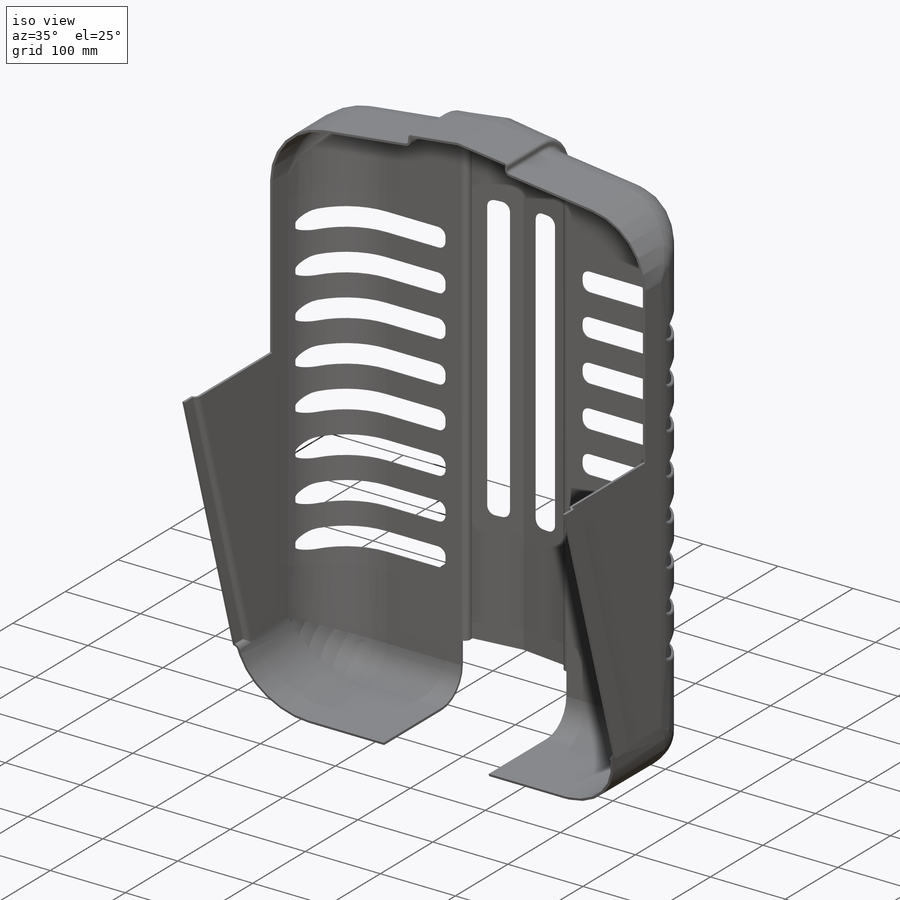
[diagram: iso view]
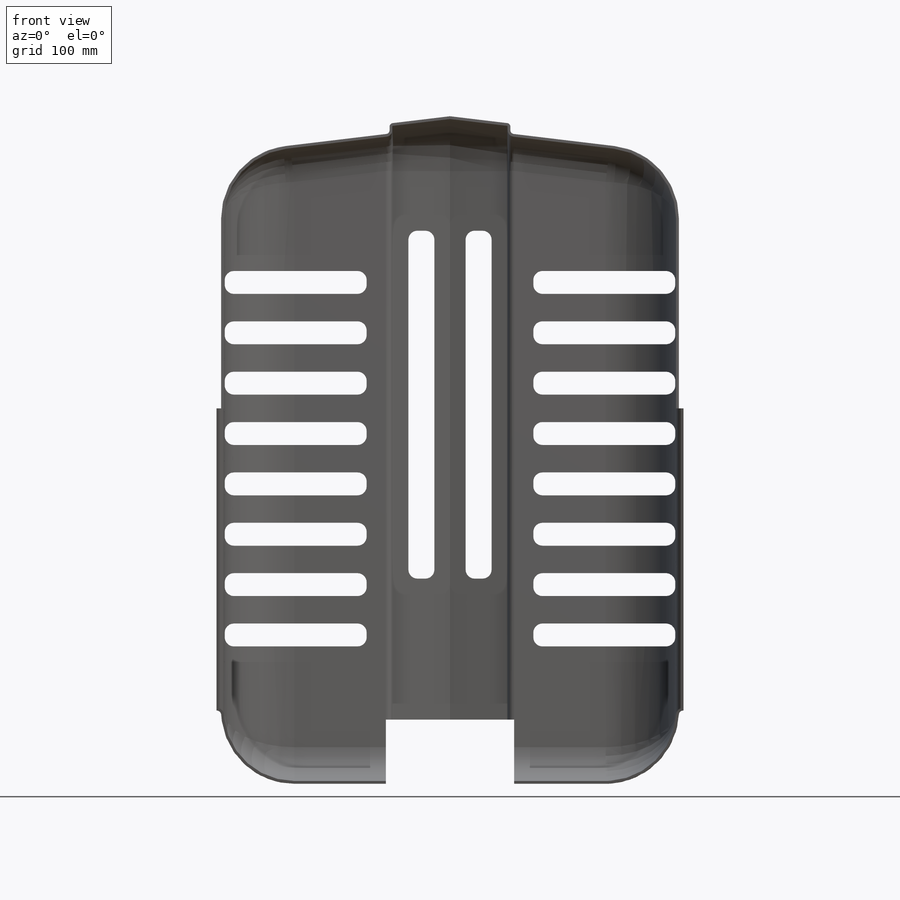
[diagram: front view]
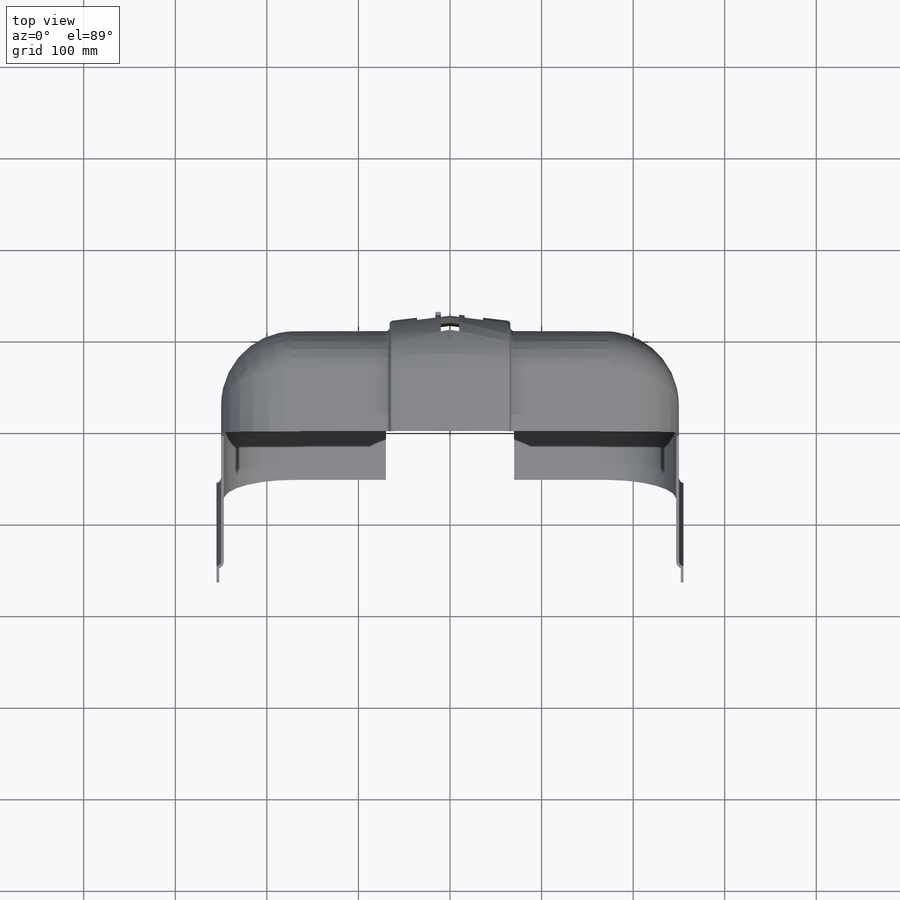
[diagram: top view]
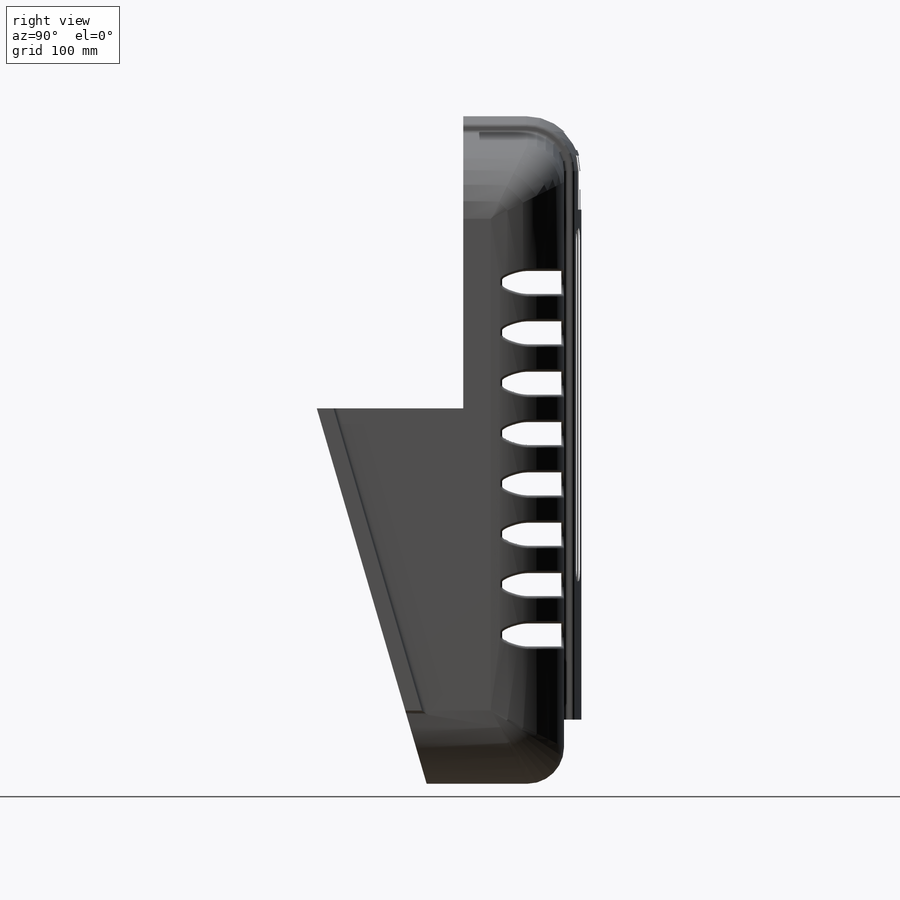
[diagram: right view]
SOLIDWORKS PART (.sldprt)
format: sldprt  version: not decoded by parser v0  size: 1,665,536 bytes
history: native  units: mm
features: sketch x9, fillet x5, extrude x4, cut_extrude x3, material x1, sweep x1, plane x1, shell x1, pattern_linear x1 (+13 scaffold rows collapsed)
feature tree (39):
  scaffold x13  (default folders/planes/origin — collapsed)
  material  "Material <not specified>"
  sketch  "Sketch2"  dims[c1.D1=500.0mm c1.D2=11.0mm c1.D3=132.0mm c1.D4=728.7mm c1.D5=7.92mm c2.D2=30.0mm c2.D3=718.0mm]
  extrude  "Boss-Extrude1"  Depth=270mm
  fillet  "Fillet6"  Radius=40mm
  sketch  "Sketch4"  dims[c1.D1=30.0mm c1.D2=11.0mm c1.D3=132.0mm c2.D2=7.92mm c2.D4=66.0mm c3.D2=7.92mm c3.D4=11.0mm]
  sketch  "3DSketch1"  dims[c1.D2=120.0mm c1.D1=~112.934359mm c1.D3=11.0mm c2.D1=~40.835427mm c2.D3=~25.74554mm c2.D4=20.0mm c3.D1=11.0mm]
  sweep  "Sweep1"
  fillet  "Fillet5"  Radius=80mm
  fillet  "Fillet7"  Radius=4mm
  plane  "Plane1"
  sketch  "Sketch9"  dims[c1.D7=10.0mm c1.D1=25.0mm c1.D2=25.0mm c1.D3=150.0mm c1.D4=21.0mm c2.D1=130.0mm c2.D5=70.0mm c2.D6=70.0mm c2.D7=55.0mm c3.D5=~17.141719mm c3.D8=65.0mm c3.D9=320.0mm c3.D7=380.0mm c4.D8=17.0mm c4.D9=65.0mm c4.D1=380.0mm c4.D10=4.0mm c4.D5=17.0mm c4.D7=17.0mm]
  sketch  "Sketch8"  dims[D1=120.0mm D2=410.0mm D3=160.0mm]
  cut_extrude  "Cut-Extrude2"  [1 undecoded]
  sketch  "Sketch11"  dims[c1.D1=18.0mm c1.D2=330.0mm c2.D1=18.0mm]
  extrude  "Boss-Extrude4"  Depth=5mm
  fillet  "Fillet9"  Radius=5mm
  shell  "Shell3"  Thickness=3mm
  cut_extrude  "Cut-Extrude8"  [1 undecoded]
  cut_extrude  "Cut-Extrude9"  [1 undecoded]
  sketch  "Sketch9<4>"
  pattern_linear  "LPattern1"  Count1=8 Count2=1 Spacing1=55mm Spacing2=50mm
  fillet  "Fillet8"  Radius=3mm
  sketch  "Sketch12"  dims[D1=20.0mm D2=72.0mm D3=32.0mm D4=59.0mm D5=17.0mm D6=22.0mm]
  extrude  "Boss-Extrude5"  Depth=2mm
  sketch  "Sketch13"  dims[D1=20.0mm D2=20.0mm D3=6.0mm D4=6.0mm]
  extrude  "Boss-Extrude6"  Depth=4mm
decode coverage: 19 of 24 modeling features carry decoded parameters
note: ~ marks probable driven/reference dimensions
note: 3 parameter values undecoded
summary: no parameter record found for 3 features
note: suppression state not decoded; provenance and decode notes live in map.json
